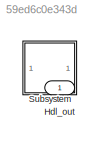
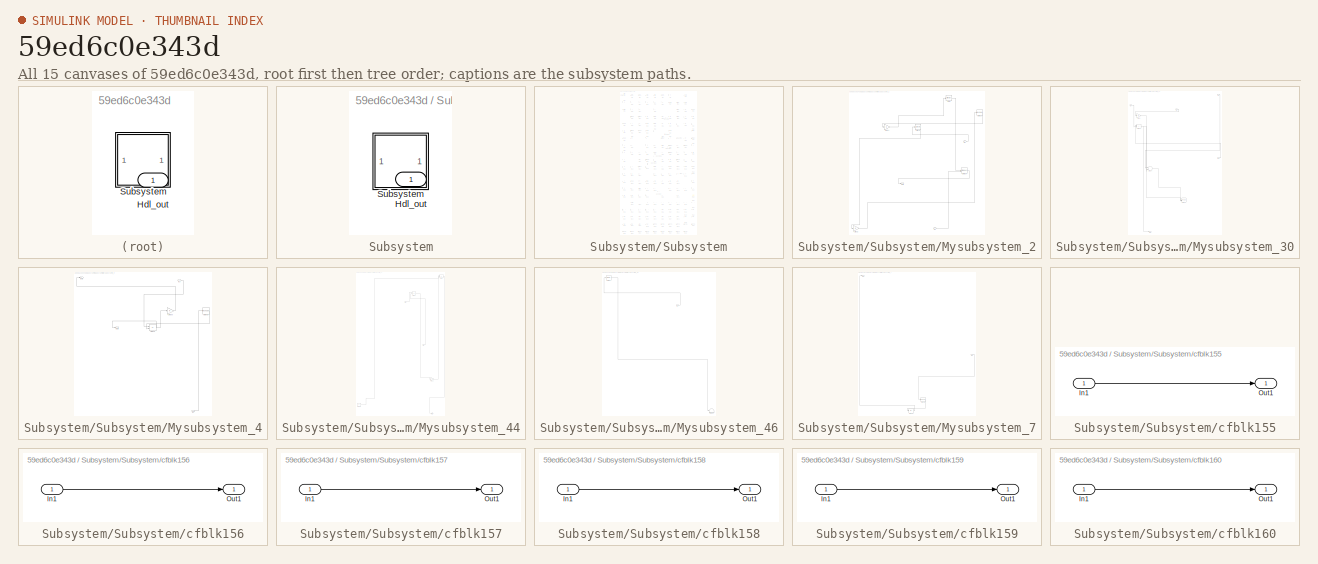
[diagram: thumbnail index - all 15 canvases of the model, root first then tree order]
MODEL slx_59ed6c0e343d
KIND model
CONFIG AbsTol = auto
CONFIG EnableMultiTasking = off
CONFIG FixedStep = auto
CONFIG MaxStep = auto
CONFIG MinStep = auto
CONFIG RelTol = 1e-3
CONFIG SampleTimeConstraint = Unconstrained
CONFIG SolverName = VariableStepAuto
CONFIG StartTime = 0.0
CONFIG StopTime = 10.0
BLOCK [Outport] Hdl_out
  OutDataTypeStr = uint8
BLOCK [SubSystem] Subsystem
BLOCK [Outport] Subsystem/Hdl_out
  OutDataTypeStr = uint8
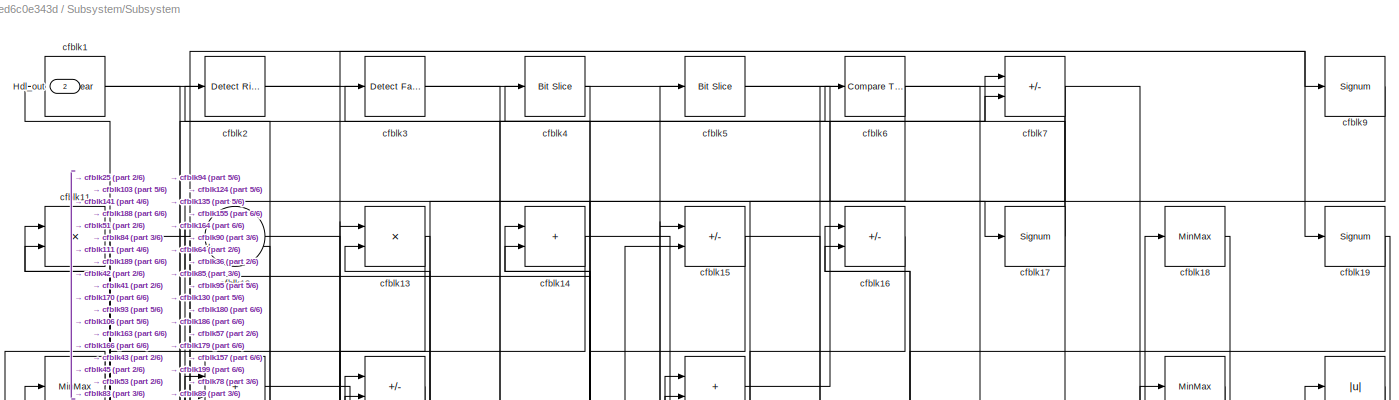
[diagram: Subsystem/Subsystem - part 1/6, full width, top band]
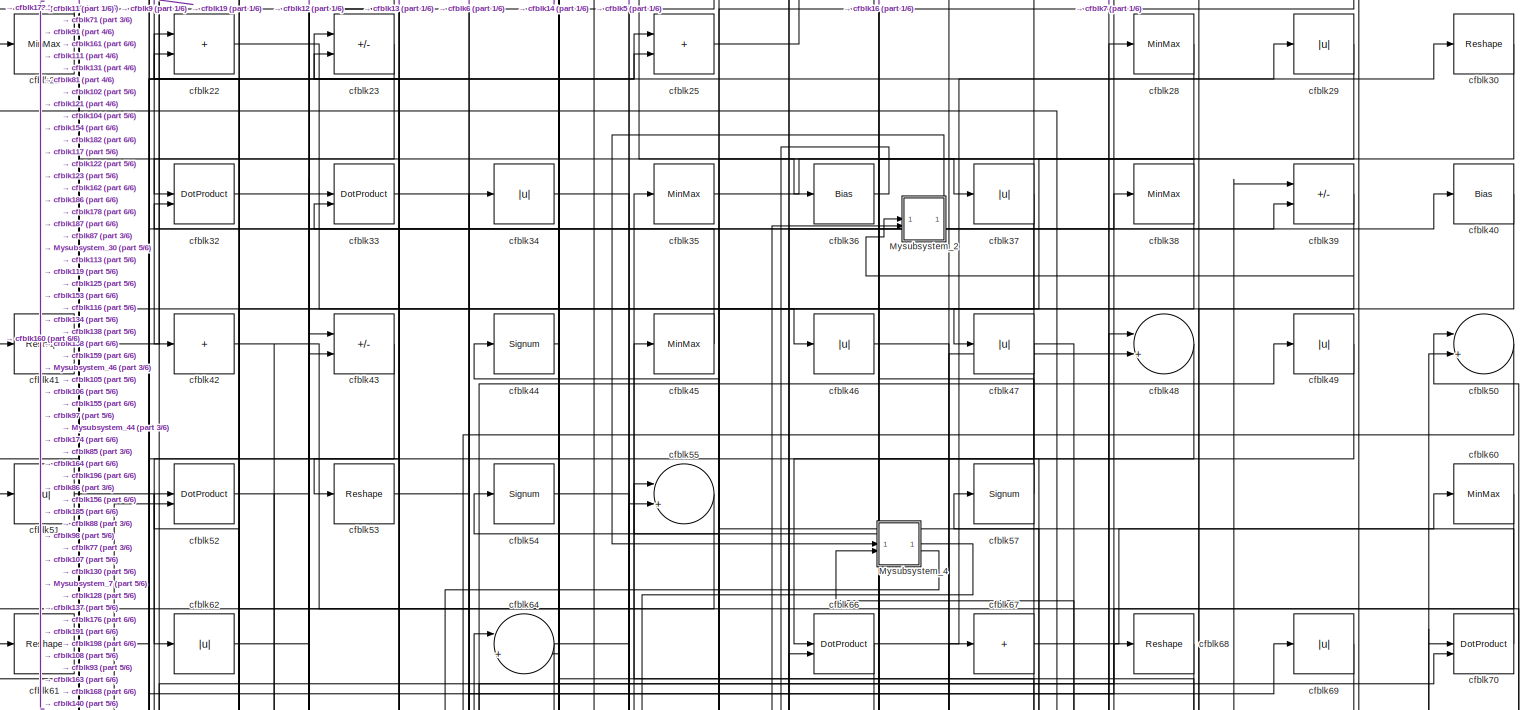
[diagram: Subsystem/Subsystem - part 2/6, full width, top band]
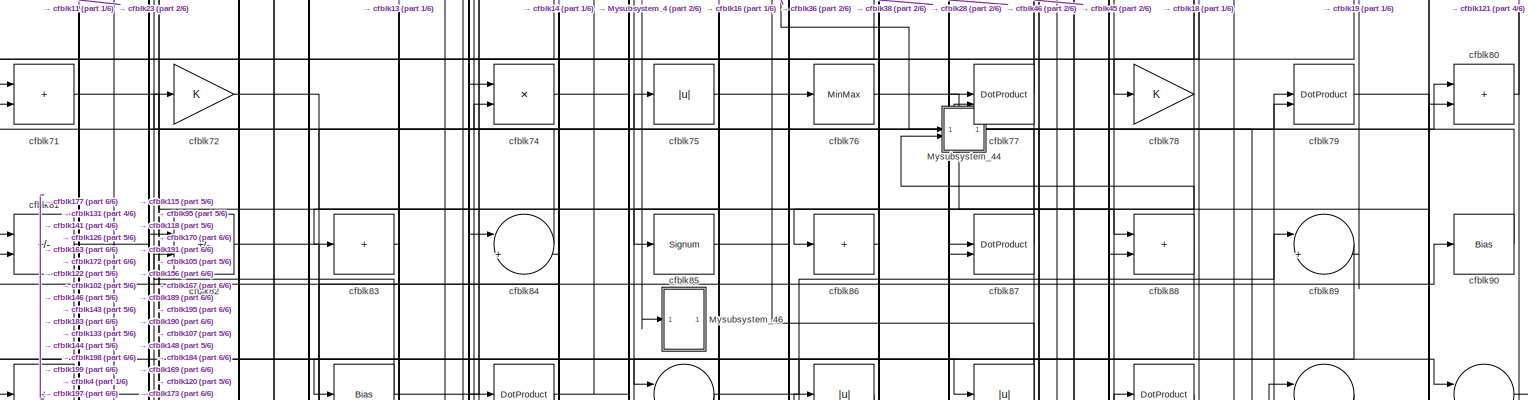
[diagram: Subsystem/Subsystem - part 3/6, full width, middle band]
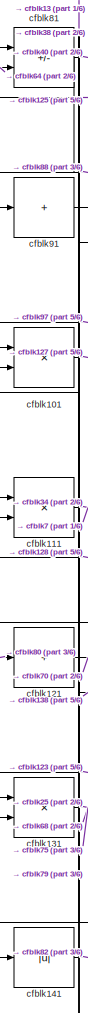
[diagram: Subsystem/Subsystem - part 4/6, middle left region]
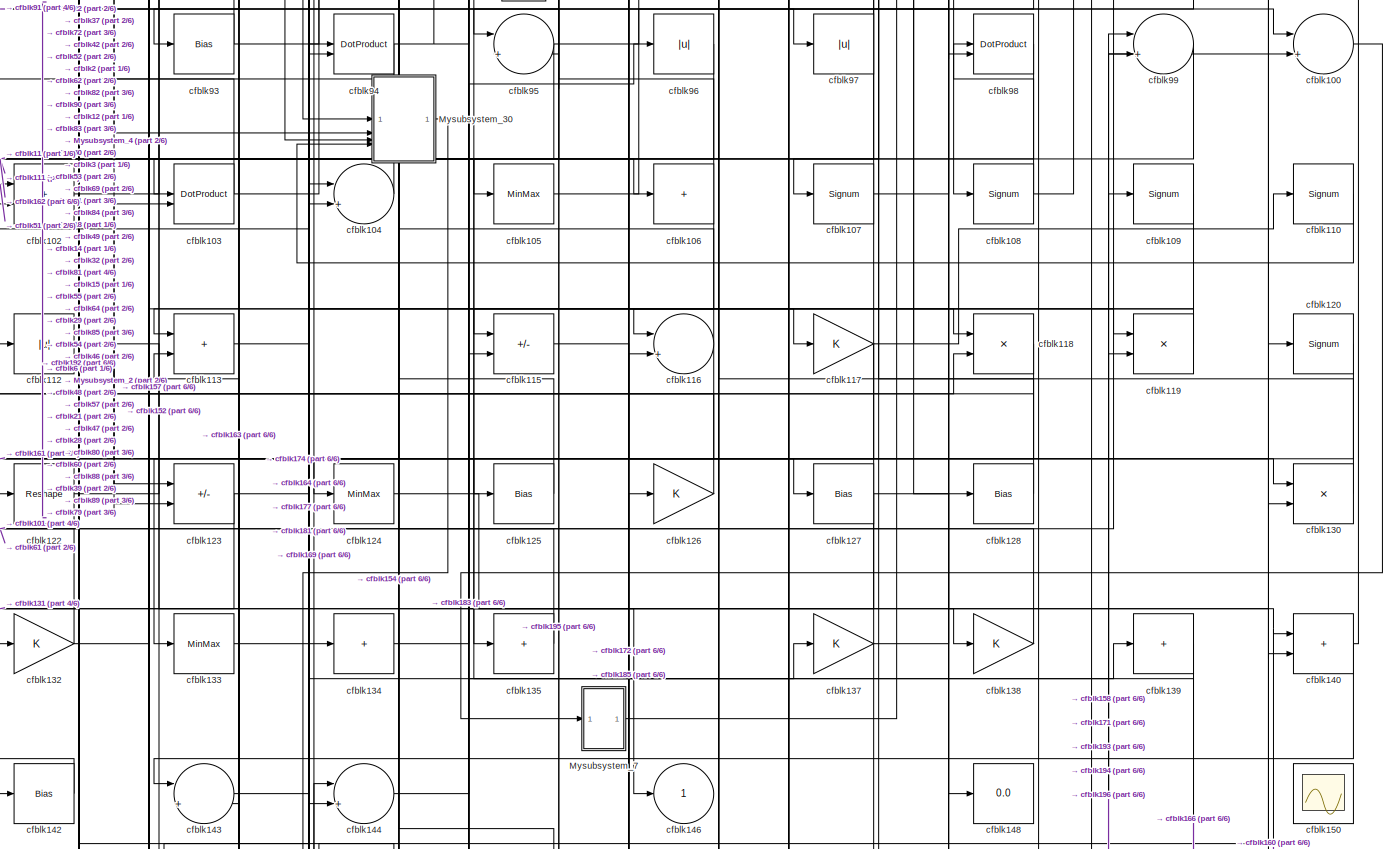
[diagram: Subsystem/Subsystem - part 5/6, full width, middle band]
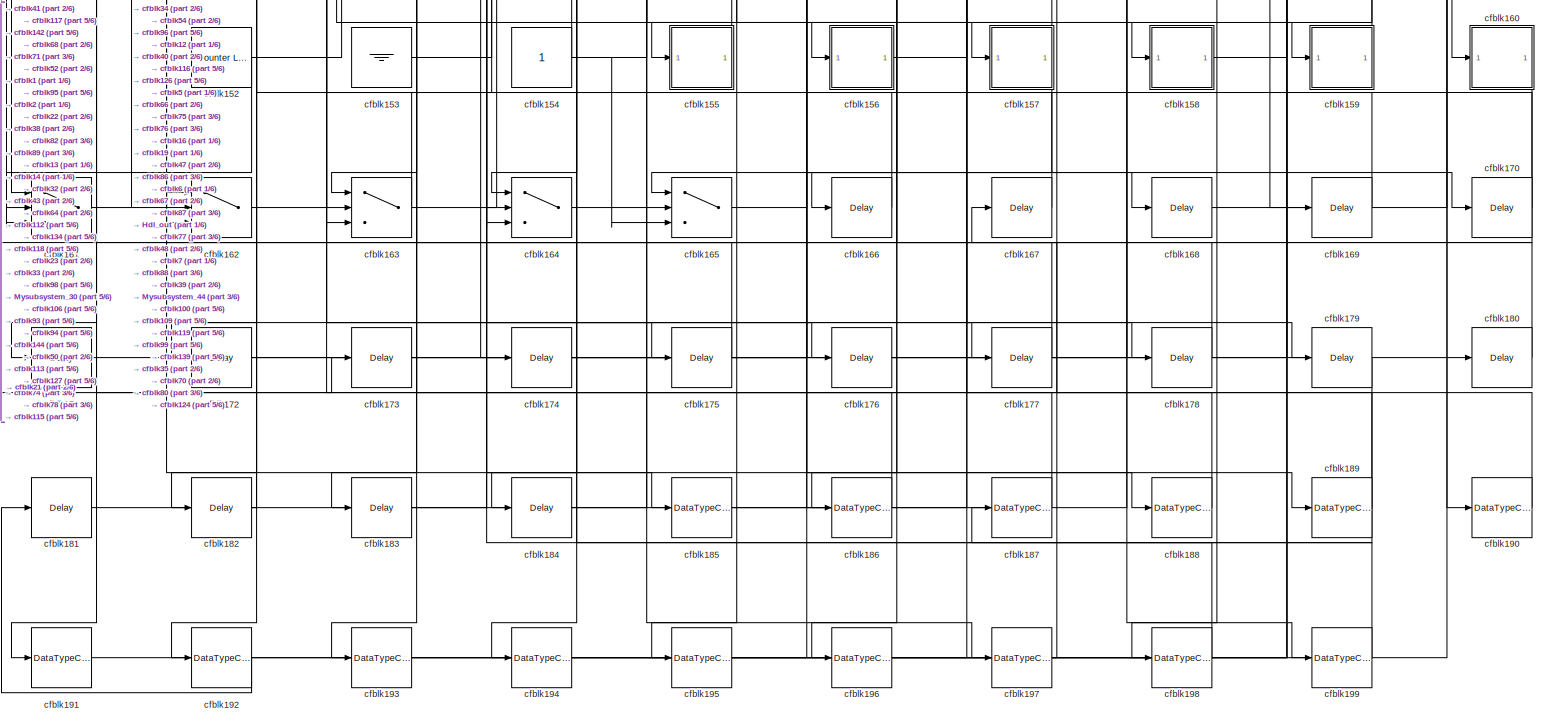
[diagram: Subsystem/Subsystem - part 6/6, full width, bottom band]
BLOCK [SubSystem] Subsystem/Subsystem
BLOCK [Outport] Subsystem/Subsystem/Hdl_out
  OutDataTypeStr = uint8
  Port = 2
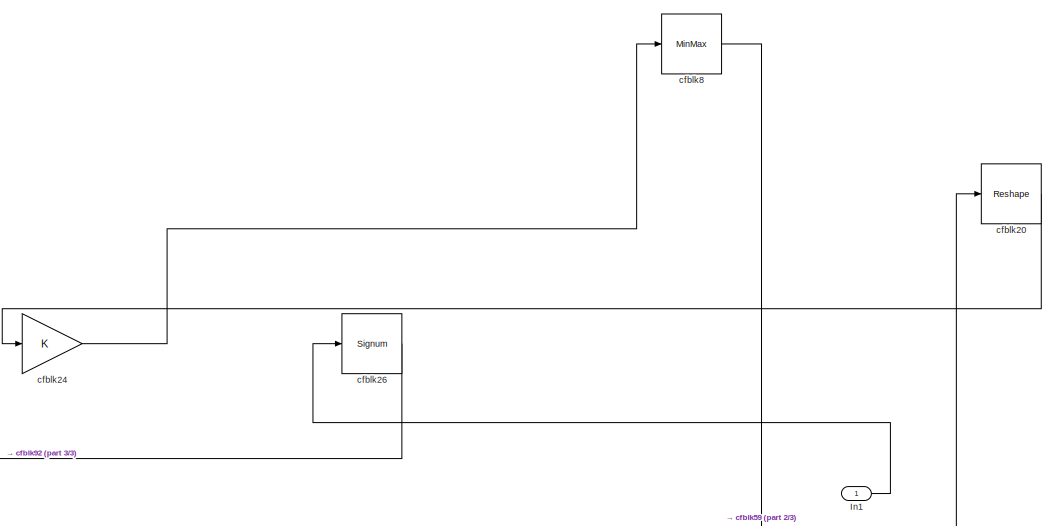
[diagram: Subsystem/Subsystem/Mysubsystem_2 - part 1/3, full width, top band]
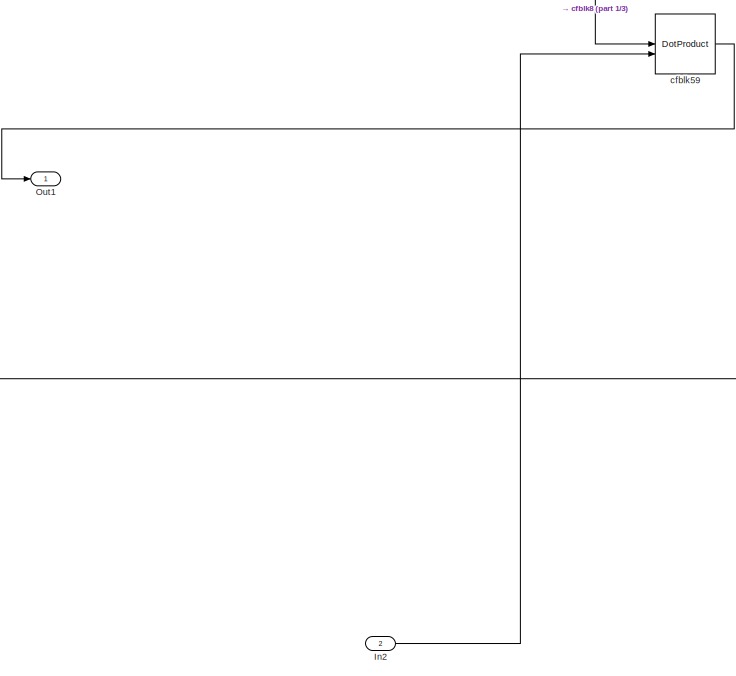
[diagram: Subsystem/Subsystem/Mysubsystem_2 - part 2/3, bottom center region]
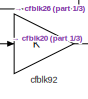
[diagram: Subsystem/Subsystem/Mysubsystem_2 - part 3/3, bottom left region]
BLOCK [SubSystem] Subsystem/Subsystem/Mysubsystem_2
  RTWFcnName = Mysubsystem_2
  RTWFcnNameOpts = User specified
  RTWFileNameOpts = Use function name
  RTWSystemCode = Reusable function
  TreatAsAtomicUnit = on
BLOCK [Inport] Subsystem/Subsystem/Mysubsystem_2/In1
BLOCK [Inport] Subsystem/Subsystem/Mysubsystem_2/In2
  Port = 2
BLOCK [Outport] Subsystem/Subsystem/Mysubsystem_2/Out1
BLOCK [Reshape] Subsystem/Subsystem/Mysubsystem_2/cfblk20
BLOCK [Gain] Subsystem/Subsystem/Mysubsystem_2/cfblk24
BLOCK [Signum] Subsystem/Subsystem/Mysubsystem_2/cfblk26
BLOCK [DotProduct] Subsystem/Subsystem/Mysubsystem_2/cfblk59
  OutDataTypeStr = Inherit: Inherit via internal rule
BLOCK [MinMax] Subsystem/Subsystem/Mysubsystem_2/cfblk8
BLOCK [Gain] Subsystem/Subsystem/Mysubsystem_2/cfblk92
BLOCK [SubSystem] Subsystem/Subsystem/Mysubsystem_30
  RTWFcnName = Mysubsystem_30
  RTWFcnNameOpts = User specified
  RTWFileNameOpts = Use function name
  RTWSystemCode = Reusable function
  TreatAsAtomicUnit = on
BLOCK [Inport] Subsystem/Subsystem/Mysubsystem_30/In1
BLOCK [Inport] Subsystem/Subsystem/Mysubsystem_30/In2
  Port = 2
BLOCK [Inport] Subsystem/Subsystem/Mysubsystem_30/In3
  Port = 3
BLOCK [Inport] Subsystem/Subsystem/Mysubsystem_30/In4
  Port = 4
BLOCK [Outport] Subsystem/Subsystem/Mysubsystem_30/Out1
BLOCK [Sum] Subsystem/Subsystem/Mysubsystem_30/cfblk114
  Inputs = |++
BLOCK [Record] Subsystem/Subsystem/Mysubsystem_30/cfblk147
  CompatibilityTag = XY
  FileSettingsInternal = {"entries":[{"content":{"excelSettings":{"content":{},"type":"Streamout.ExcelSettings"}},"type":"Streamout.FileSettingStorage","uuid":""}],"packageUris":["http:\/\/schema.mathworks.com\/mf0\/streamout_blocks\/R2020a"],"version":"1.0"}
  Layout = [1 1]
  SignalsInternal = {"entries":[{"content":{},"type":"RecordBlkView.InputSignals","uuid":""}],"packageUris":["http:\/\/schema.mathworks.com\/mf0\/streamout_blocks\/R2020a"],"version":"1.0"}
  VisualizationBindings = {"xyplotplugin":{"info":[{"series":[],"subplotID":1}]}}
  st = -1
BLOCK [Gain] Subsystem/Subsystem/Mysubsystem_30/cfblk63
BLOCK [Sum] Subsystem/Subsystem/Mysubsystem_30/cfblk73
  IconShape = rectangular
BLOCK [SubSystem] Subsystem/Subsystem/Mysubsystem_4
  RTWFcnName = Mysubsystem_4
  RTWFcnNameOpts = User specified
  RTWFileNameOpts = Use function name
  RTWSystemCode = Reusable function
  TreatAsAtomicUnit = on
BLOCK [Inport] Subsystem/Subsystem/Mysubsystem_4/In1
BLOCK [Inport] Subsystem/Subsystem/Mysubsystem_4/In2
  Port = 2
BLOCK [Outport] Subsystem/Subsystem/Mysubsystem_4/Out1
BLOCK [Outport] Subsystem/Subsystem/Mysubsystem_4/Out2
  Port = 2
BLOCK [Gain] Subsystem/Subsystem/Mysubsystem_4/cfblk56
BLOCK [Reshape] Subsystem/Subsystem/Mysubsystem_4/cfblk58
BLOCK [Sum] Subsystem/Subsystem/Mysubsystem_4/cfblk65
  IconShape = rectangular
  Inputs = +-
BLOCK [SubSystem] Subsystem/Subsystem/Mysubsystem_44
  RTWFcnName = Mysubsystem_44
  RTWFcnNameOpts = User specified
  RTWFileNameOpts = Use function name
  RTWSystemCode = Reusable function
  TreatAsAtomicUnit = on
BLOCK [Inport] Subsystem/Subsystem/Mysubsystem_44/In1
BLOCK [Inport] Subsystem/Subsystem/Mysubsystem_44/In2
  Port = 2
BLOCK [Outport] Subsystem/Subsystem/Mysubsystem_44/Out1
BLOCK [Sum] Subsystem/Subsystem/Mysubsystem_44/cfblk10
  IconShape = rectangular
  Inputs = +-
BLOCK [Gain] Subsystem/Subsystem/Mysubsystem_44/cfblk129
BLOCK [Constant] Subsystem/Subsystem/Mysubsystem_44/cfblk151
  SampleTime = -1
BLOCK [Sum] Subsystem/Subsystem/Mysubsystem_44/cfblk27
  IconShape = rectangular
  Inputs = +-
BLOCK [SubSystem] Subsystem/Subsystem/Mysubsystem_46
  RTWFcnName = Mysubsystem_46
  RTWFcnNameOpts = User specified
  RTWFileNameOpts = Use function name
  RTWSystemCode = Reusable function
  TreatAsAtomicUnit = on
BLOCK [Inport] Subsystem/Subsystem/Mysubsystem_46/In1
BLOCK [Terminator] Subsystem/Subsystem/Mysubsystem_46/cfblk149
BLOCK [MinMax] Subsystem/Subsystem/Mysubsystem_46/cfblk31
BLOCK [SubSystem] Subsystem/Subsystem/Mysubsystem_7
  RTWFcnName = Mysubsystem_7
  RTWFcnNameOpts = User specified
  RTWFileNameOpts = Use function name
  RTWSystemCode = Reusable function
  TreatAsAtomicUnit = on
BLOCK [Inport] Subsystem/Subsystem/Mysubsystem_7/In1
BLOCK [Outport] Subsystem/Subsystem/Mysubsystem_7/Out1
BLOCK [Reshape] Subsystem/Subsystem/Mysubsystem_7/cfblk136
BLOCK [Abs] Subsystem/Subsystem/Mysubsystem_7/cfblk145
  SaturateOnIntegerOverflow = off
BLOCK [Reference] Subsystem/Subsystem/cfblk1  REF=simulink/Logic and Bit
Operations/Bit Clear
  LibrarySourceBlock = hdlsllib/Logic and Bit\nOperations/Bit Clear
  SourceBlock = simulink/Logic and Bit\nOperations/Bit Clear
  SourceType = Bit Clear
BLOCK [Sum] Subsystem/Subsystem/cfblk100
  Inputs = |++
  OutDataTypeStr = uint8
BLOCK [Product] Subsystem/Subsystem/cfblk101
  Inputs = */
  OutDataTypeStr = uint8
  RndMeth = Zero
  SaturateOnIntegerOverflow = on
BLOCK [Sum] Subsystem/Subsystem/cfblk102
  IconShape = rectangular
  OutDataTypeStr = uint8
BLOCK [DotProduct] Subsystem/Subsystem/cfblk103
  OutDataTypeStr = uint8
BLOCK [Sum] Subsystem/Subsystem/cfblk104
  Inputs = |++
  OutDataTypeStr = uint8
BLOCK [MinMax] Subsystem/Subsystem/cfblk105
  OutDataTypeStr = uint8
BLOCK [Sum] Subsystem/Subsystem/cfblk106
  IconShape = rectangular
  Inputs = +
  OutDataTypeStr = uint8
BLOCK [Signum] Subsystem/Subsystem/cfblk107
BLOCK [Signum] Subsystem/Subsystem/cfblk108
BLOCK [Signum] Subsystem/Subsystem/cfblk109
BLOCK [Product] Subsystem/Subsystem/cfblk11
  Inputs = */
  OutDataTypeStr = uint8
  RndMeth = Zero
  SaturateOnIntegerOverflow = on
BLOCK [Signum] Subsystem/Subsystem/cfblk110
BLOCK [Product] Subsystem/Subsystem/cfblk111
  Inputs = */
  OutDataTypeStr = uint8
  RndMeth = Zero
  SaturateOnIntegerOverflow = on
BLOCK [Abs] Subsystem/Subsystem/cfblk112
  OutDataTypeStr = uint8
  SaturateOnIntegerOverflow = off
BLOCK [Sum] Subsystem/Subsystem/cfblk113
  IconShape = rectangular
  OutDataTypeStr = uint8
BLOCK [Sum] Subsystem/Subsystem/cfblk115
  IconShape = rectangular
  Inputs = +-
  OutDataTypeStr = uint8
BLOCK [Sum] Subsystem/Subsystem/cfblk116
  Inputs = |++
  OutDataTypeStr = uint8
BLOCK [Gain] Subsystem/Subsystem/cfblk117
  OutDataTypeStr = uint8
BLOCK [Product] Subsystem/Subsystem/cfblk118
  Inputs = */
  OutDataTypeStr = uint8
  RndMeth = Zero
  SaturateOnIntegerOverflow = on
BLOCK [Product] Subsystem/Subsystem/cfblk119
  Inputs = */
  OutDataTypeStr = uint8
  RndMeth = Zero
  SaturateOnIntegerOverflow = on
BLOCK [Sum] Subsystem/Subsystem/cfblk12
  Inputs = |++
  OutDataTypeStr = uint8
BLOCK [Signum] Subsystem/Subsystem/cfblk120
BLOCK [Sum] Subsystem/Subsystem/cfblk121
  IconShape = rectangular
  Inputs = +
  OutDataTypeStr = uint8
BLOCK [Reshape] Subsystem/Subsystem/cfblk122
BLOCK [Sum] Subsystem/Subsystem/cfblk123
  IconShape = rectangular
  Inputs = +-
  OutDataTypeStr = uint8
BLOCK [MinMax] Subsystem/Subsystem/cfblk124
  OutDataTypeStr = uint8
BLOCK [Bias] Subsystem/Subsystem/cfblk125
  Bias = 0.0
  SaturateOnIntegerOverflow = off
BLOCK [Gain] Subsystem/Subsystem/cfblk126
  OutDataTypeStr = uint8
BLOCK [Bias] Subsystem/Subsystem/cfblk127
  Bias = 0.0
  SaturateOnIntegerOverflow = off
BLOCK [Bias] Subsystem/Subsystem/cfblk128
  Bias = 0.0
  SaturateOnIntegerOverflow = off
BLOCK [Product] Subsystem/Subsystem/cfblk13
  Inputs = */
  OutDataTypeStr = uint8
  RndMeth = Zero
  SaturateOnIntegerOverflow = on
BLOCK [Product] Subsystem/Subsystem/cfblk130
  Inputs = */
  OutDataTypeStr = uint8
  RndMeth = Zero
  SaturateOnIntegerOverflow = on
BLOCK [Product] Subsystem/Subsystem/cfblk131
  Inputs = */
  OutDataTypeStr = uint8
  RndMeth = Zero
  SaturateOnIntegerOverflow = on
BLOCK [Gain] Subsystem/Subsystem/cfblk132
  OutDataTypeStr = uint8
BLOCK [MinMax] Subsystem/Subsystem/cfblk133
  OutDataTypeStr = uint8
BLOCK [Sum] Subsystem/Subsystem/cfblk134
  IconShape = rectangular
  Inputs = +
  OutDataTypeStr = uint8
BLOCK [Sum] Subsystem/Subsystem/cfblk135
  IconShape = rectangular
  Inputs = +
  OutDataTypeStr = uint8
BLOCK [Gain] Subsystem/Subsystem/cfblk137
  OutDataTypeStr = uint8
BLOCK [Gain] Subsystem/Subsystem/cfblk138
  OutDataTypeStr = uint8
BLOCK [Sum] Subsystem/Subsystem/cfblk139
  IconShape = rectangular
  Inputs = +
  OutDataTypeStr = uint8
BLOCK [Sum] Subsystem/Subsystem/cfblk14
  IconShape = rectangular
  OutDataTypeStr = uint8
BLOCK [Sum] Subsystem/Subsystem/cfblk140
  IconShape = rectangular
  OutDataTypeStr = uint8
BLOCK [Abs] Subsystem/Subsystem/cfblk141
  OutDataTypeStr = uint8
  SaturateOnIntegerOverflow = off
BLOCK [Bias] Subsystem/Subsystem/cfblk142
  Bias = 0.0
  SaturateOnIntegerOverflow = off
BLOCK [Sum] Subsystem/Subsystem/cfblk143
  Inputs = |++
  OutDataTypeStr = uint8
BLOCK [Sum] Subsystem/Subsystem/cfblk144
  Inputs = |++
  OutDataTypeStr = uint8
BLOCK [Outport] Subsystem/Subsystem/cfblk146
  OutDataTypeStr = uint8
  VectorParamsAs1DForOutWhenUnconnected = off
BLOCK [Display] Subsystem/Subsystem/cfblk148
  Decimation = 1
BLOCK [Sum] Subsystem/Subsystem/cfblk15
  IconShape = rectangular
  Inputs = +-
  OutDataTypeStr = uint8
BLOCK [Scope] Subsystem/Subsystem/cfblk150
  Floating = on
  NumInputPorts = 1
  ScopeSpecificationString = Simulink.scopes.TimeScopeBlockCfg('CurrentConfiguration', extmgr.ConfigurationSet(extmgr.Configuration('Core','General UI',true,'FigureColor',[0.156862745098039 0.156862745098039 0.156862745098039]),extmgr.Configuration('Core','Source UI',true),extmgr.Configuration('Sources','WiredSimulink',true,'DataLoggingSaveFormat','StructureWithTime','DataLoggingLimitDataPoints',true,'DataLoggingDecimation','...<+2674ch>
BLOCK [Reference] Subsystem/Subsystem/cfblk152  REF=hdlsllib/Sources/Counter
Limited
  SourceBlock = hdlsllib/Sources/Counter\nLimited
  SourceType = Counter Limited
BLOCK [Ground] Subsystem/Subsystem/cfblk153
BLOCK [Constant] Subsystem/Subsystem/cfblk154
  OutDataTypeStr = uint8
  SampleTime = -1
BLOCK [SubSystem] Subsystem/Subsystem/cfblk155
  LibrarySourceBlock = hdlsllib/Ports &\nSubsystems/Subsystem
BLOCK [Inport] Subsystem/Subsystem/cfblk155/In1
BLOCK [Outport] Subsystem/Subsystem/cfblk155/Out1
BLOCK [SubSystem] Subsystem/Subsystem/cfblk156
  LibrarySourceBlock = hdlsllib/Ports &\nSubsystems/Subsystem
BLOCK [Inport] Subsystem/Subsystem/cfblk156/In1
BLOCK [Outport] Subsystem/Subsystem/cfblk156/Out1
BLOCK [SubSystem] Subsystem/Subsystem/cfblk157
  LibrarySourceBlock = hdlsllib/Ports &\nSubsystems/Subsystem
BLOCK [Inport] Subsystem/Subsystem/cfblk157/In1
BLOCK [Outport] Subsystem/Subsystem/cfblk157/Out1
BLOCK [SubSystem] Subsystem/Subsystem/cfblk158
  LibrarySourceBlock = hdlsllib/Ports &\nSubsystems/Subsystem
BLOCK [Inport] Subsystem/Subsystem/cfblk158/In1
BLOCK [Outport] Subsystem/Subsystem/cfblk158/Out1
BLOCK [SubSystem] Subsystem/Subsystem/cfblk159
  LibrarySourceBlock = hdlsllib/Ports &\nSubsystems/Subsystem
BLOCK [Inport] Subsystem/Subsystem/cfblk159/In1
BLOCK [Outport] Subsystem/Subsystem/cfblk159/Out1
BLOCK [Sum] Subsystem/Subsystem/cfblk16
  IconShape = rectangular
  Inputs = +-
  OutDataTypeStr = uint8
BLOCK [SubSystem] Subsystem/Subsystem/cfblk160
  LibrarySourceBlock = hdlsllib/Ports &\nSubsystems/Subsystem
BLOCK [Inport] Subsystem/Subsystem/cfblk160/In1
BLOCK [Outport] Subsystem/Subsystem/cfblk160/Out1
BLOCK [Switch] Subsystem/Subsystem/cfblk161
  InputSameDT = off
  OutDataTypeStr = uint8
  SaturateOnIntegerOverflow = off
BLOCK [Switch] Subsystem/Subsystem/cfblk162
  InputSameDT = off
  OutDataTypeStr = uint8
  SaturateOnIntegerOverflow = off
BLOCK [Switch] Subsystem/Subsystem/cfblk163
  InputSameDT = off
  OutDataTypeStr = uint8
  SaturateOnIntegerOverflow = off
BLOCK [Switch] Subsystem/Subsystem/cfblk164
  InputSameDT = off
  OutDataTypeStr = uint8
  SaturateOnIntegerOverflow = off
BLOCK [Switch] Subsystem/Subsystem/cfblk165
  InputSameDT = off
  OutDataTypeStr = uint8
  SaturateOnIntegerOverflow = off
BLOCK [Delay] Subsystem/Subsystem/cfblk166
  InputPortMap = u0
  SampleTime = 1
BLOCK [Delay] Subsystem/Subsystem/cfblk167
  InputPortMap = u0
  SampleTime = 1
BLOCK [Delay] Subsystem/Subsystem/cfblk168
  InputPortMap = u0
  SampleTime = 1
BLOCK [Delay] Subsystem/Subsystem/cfblk169
  InputPortMap = u0
  SampleTime = 1
BLOCK [Signum] Subsystem/Subsystem/cfblk17
BLOCK [Delay] Subsystem/Subsystem/cfblk170
  InputPortMap = u0
  SampleTime = 1
BLOCK [Delay] Subsystem/Subsystem/cfblk171
  InputPortMap = u0
  SampleTime = 1
BLOCK [Delay] Subsystem/Subsystem/cfblk172
  InputPortMap = u0
  SampleTime = 1
BLOCK [Delay] Subsystem/Subsystem/cfblk173
  InputPortMap = u0
  SampleTime = 1
BLOCK [Delay] Subsystem/Subsystem/cfblk174
  InputPortMap = u0
  SampleTime = 1
BLOCK [Delay] Subsystem/Subsystem/cfblk175
  InputPortMap = u0
  SampleTime = 1
BLOCK [Delay] Subsystem/Subsystem/cfblk176
  InputPortMap = u0
  SampleTime = 1
BLOCK [Delay] Subsystem/Subsystem/cfblk177
  InputPortMap = u0
  SampleTime = 1
BLOCK [Delay] Subsystem/Subsystem/cfblk178
  InputPortMap = u0
  SampleTime = 1
BLOCK [Delay] Subsystem/Subsystem/cfblk179
  InputPortMap = u0
  SampleTime = 1
BLOCK [MinMax] Subsystem/Subsystem/cfblk18
  OutDataTypeStr = uint8
BLOCK [Delay] Subsystem/Subsystem/cfblk180
  InputPortMap = u0
  SampleTime = 1
BLOCK [Delay] Subsystem/Subsystem/cfblk181
  InputPortMap = u0
  SampleTime = 1
BLOCK [Delay] Subsystem/Subsystem/cfblk182
  InputPortMap = u0
  SampleTime = 1
BLOCK [Delay] Subsystem/Subsystem/cfblk183
  InputPortMap = u0
  SampleTime = 1
BLOCK [Delay] Subsystem/Subsystem/cfblk184
  InputPortMap = u0
  SampleTime = 1
BLOCK [DataTypeConversion] Subsystem/Subsystem/cfblk185
  OutDataTypeStr = uint8
  RndMeth = Floor
  SaturateOnIntegerOverflow = off
BLOCK [DataTypeConversion] Subsystem/Subsystem/cfblk186
  OutDataTypeStr = uint8
  RndMeth = Floor
  SaturateOnIntegerOverflow = off
BLOCK [DataTypeConversion] Subsystem/Subsystem/cfblk187
  OutDataTypeStr = uint8
  RndMeth = Floor
  SaturateOnIntegerOverflow = off
BLOCK [DataTypeConversion] Subsystem/Subsystem/cfblk188
  OutDataTypeStr = uint8
  RndMeth = Floor
  SaturateOnIntegerOverflow = off
BLOCK [DataTypeConversion] Subsystem/Subsystem/cfblk189
  OutDataTypeStr = uint8
  RndMeth = Floor
  SaturateOnIntegerOverflow = off
BLOCK [Signum] Subsystem/Subsystem/cfblk19
BLOCK [DataTypeConversion] Subsystem/Subsystem/cfblk190
  OutDataTypeStr = uint8
  RndMeth = Floor
  SaturateOnIntegerOverflow = off
BLOCK [DataTypeConversion] Subsystem/Subsystem/cfblk191
  OutDataTypeStr = uint8
  RndMeth = Floor
  SaturateOnIntegerOverflow = off
BLOCK [DataTypeConversion] Subsystem/Subsystem/cfblk192
  OutDataTypeStr = uint8
  RndMeth = Floor
  SaturateOnIntegerOverflow = off
BLOCK [DataTypeConversion] Subsystem/Subsystem/cfblk193
  OutDataTypeStr = uint8
  RndMeth = Floor
  SaturateOnIntegerOverflow = off
BLOCK [DataTypeConversion] Subsystem/Subsystem/cfblk194
  OutDataTypeStr = uint8
  RndMeth = Floor
  SaturateOnIntegerOverflow = off
BLOCK [DataTypeConversion] Subsystem/Subsystem/cfblk195
  OutDataTypeStr = uint8
  RndMeth = Floor
  SaturateOnIntegerOverflow = off
BLOCK [DataTypeConversion] Subsystem/Subsystem/cfblk196
  OutDataTypeStr = uint8
  RndMeth = Floor
  SaturateOnIntegerOverflow = off
BLOCK [DataTypeConversion] Subsystem/Subsystem/cfblk197
  OutDataTypeStr = uint8
  RndMeth = Floor
  SaturateOnIntegerOverflow = off
BLOCK [DataTypeConversion] Subsystem/Subsystem/cfblk198
  OutDataTypeStr = uint8
  RndMeth = Floor
  SaturateOnIntegerOverflow = off
BLOCK [DataTypeConversion] Subsystem/Subsystem/cfblk199
  OutDataTypeStr = uint8
  RndMeth = Floor
  SaturateOnIntegerOverflow = off
BLOCK [Reference] Subsystem/Subsystem/cfblk2  REF=hdlsllib/Logic and Bit
Operations/Detect Rise
Positive
  SourceBlock = hdlsllib/Logic and Bit\nOperations/Detect Rise\nPositive
  SourceType = Detect Rise Positive
BLOCK [MinMax] Subsystem/Subsystem/cfblk21
  OutDataTypeStr = uint8
BLOCK [Sum] Subsystem/Subsystem/cfblk22
  IconShape = rectangular
  OutDataTypeStr = uint8
BLOCK [Sum] Subsystem/Subsystem/cfblk23
  IconShape = rectangular
  Inputs = +-
  OutDataTypeStr = uint8
BLOCK [Sum] Subsystem/Subsystem/cfblk25
  IconShape = rectangular
  OutDataTypeStr = uint8
BLOCK [MinMax] Subsystem/Subsystem/cfblk28
  OutDataTypeStr = uint8
BLOCK [Abs] Subsystem/Subsystem/cfblk29
  OutDataTypeStr = uint8
  SaturateOnIntegerOverflow = off
BLOCK [Reference] Subsystem/Subsystem/cfblk3  REF=hdlsllib/Logic and Bit
Operations/Detect Fall
Nonpositive
  SourceBlock = hdlsllib/Logic and Bit\nOperations/Detect Fall\nNonpositive
  SourceType = Detect Fall Nonpositive
BLOCK [Reshape] Subsystem/Subsystem/cfblk30
BLOCK [DotProduct] Subsystem/Subsystem/cfblk32
  OutDataTypeStr = uint8
BLOCK [DotProduct] Subsystem/Subsystem/cfblk33
  OutDataTypeStr = uint8
BLOCK [Abs] Subsystem/Subsystem/cfblk34
  OutDataTypeStr = uint8
  SaturateOnIntegerOverflow = off
BLOCK [MinMax] Subsystem/Subsystem/cfblk35
  OutDataTypeStr = uint8
BLOCK [Bias] Subsystem/Subsystem/cfblk36
  Bias = 0.0
  SaturateOnIntegerOverflow = off
BLOCK [Abs] Subsystem/Subsystem/cfblk37
  OutDataTypeStr = uint8
  SaturateOnIntegerOverflow = off
BLOCK [MinMax] Subsystem/Subsystem/cfblk38
  OutDataTypeStr = uint8
BLOCK [Sum] Subsystem/Subsystem/cfblk39
  IconShape = rectangular
  Inputs = +-
  OutDataTypeStr = uint8
BLOCK [Reference] Subsystem/Subsystem/cfblk4  REF=hdlsllib/Logic and Bit
Operations/Bit Slice
  SourceBlock = hdlsllib/Logic and Bit\nOperations/Bit Slice
  SourceType = Bit Slice
BLOCK [Bias] Subsystem/Subsystem/cfblk40
  Bias = 0.0
  SaturateOnIntegerOverflow = off
BLOCK [Reshape] Subsystem/Subsystem/cfblk41
BLOCK [Sum] Subsystem/Subsystem/cfblk42
  IconShape = rectangular
  Inputs = +
  OutDataTypeStr = uint8
BLOCK [Sum] Subsystem/Subsystem/cfblk43
  IconShape = rectangular
  Inputs = +-
  OutDataTypeStr = uint8
BLOCK [Signum] Subsystem/Subsystem/cfblk44
BLOCK [MinMax] Subsystem/Subsystem/cfblk45
  OutDataTypeStr = uint8
BLOCK [Abs] Subsystem/Subsystem/cfblk46
  OutDataTypeStr = uint8
  SaturateOnIntegerOverflow = off
BLOCK [Abs] Subsystem/Subsystem/cfblk47
  OutDataTypeStr = uint8
  SaturateOnIntegerOverflow = off
BLOCK [Sum] Subsystem/Subsystem/cfblk48
  Inputs = |++
  OutDataTypeStr = uint8
BLOCK [Abs] Subsystem/Subsystem/cfblk49
  OutDataTypeStr = uint8
  SaturateOnIntegerOverflow = off
BLOCK [Reference] Subsystem/Subsystem/cfblk5  REF=hdlsllib/Logic and Bit
Operations/Bit Slice
  SourceBlock = hdlsllib/Logic and Bit\nOperations/Bit Slice
  SourceType = Bit Slice
BLOCK [Sum] Subsystem/Subsystem/cfblk50
  Inputs = |++
  OutDataTypeStr = uint8
BLOCK [Abs] Subsystem/Subsystem/cfblk51
  OutDataTypeStr = uint8
  SaturateOnIntegerOverflow = off
BLOCK [DotProduct] Subsystem/Subsystem/cfblk52
  OutDataTypeStr = uint8
BLOCK [Reshape] Subsystem/Subsystem/cfblk53
BLOCK [Signum] Subsystem/Subsystem/cfblk54
BLOCK [Sum] Subsystem/Subsystem/cfblk55
  Inputs = |++
  OutDataTypeStr = uint8
BLOCK [Signum] Subsystem/Subsystem/cfblk57
BLOCK [Reference] Subsystem/Subsystem/cfblk6  REF=hdlsllib/Logic and Bit
Operations/Compare
To Constant
  SourceBlock = hdlsllib/Logic and Bit\nOperations/Compare\nTo Constant
  SourceType = Compare To Constant
BLOCK [MinMax] Subsystem/Subsystem/cfblk60
  OutDataTypeStr = uint8
BLOCK [Reshape] Subsystem/Subsystem/cfblk61
BLOCK [Abs] Subsystem/Subsystem/cfblk62
  OutDataTypeStr = uint8
  SaturateOnIntegerOverflow = off
BLOCK [Sum] Subsystem/Subsystem/cfblk64
  Inputs = |++
  OutDataTypeStr = uint8
BLOCK [DotProduct] Subsystem/Subsystem/cfblk66
  OutDataTypeStr = uint8
BLOCK [Sum] Subsystem/Subsystem/cfblk67
  IconShape = rectangular
  Inputs = +
  OutDataTypeStr = uint8
BLOCK [Reshape] Subsystem/Subsystem/cfblk68
BLOCK [Abs] Subsystem/Subsystem/cfblk69
  OutDataTypeStr = uint8
  SaturateOnIntegerOverflow = off
BLOCK [Sum] Subsystem/Subsystem/cfblk7
  IconShape = rectangular
  Inputs = +-
  OutDataTypeStr = uint8
BLOCK [DotProduct] Subsystem/Subsystem/cfblk70
  OutDataTypeStr = uint8
BLOCK [Sum] Subsystem/Subsystem/cfblk71
  IconShape = rectangular
  OutDataTypeStr = uint8
BLOCK [Gain] Subsystem/Subsystem/cfblk72
  OutDataTypeStr = uint8
BLOCK [Product] Subsystem/Subsystem/cfblk74
  Inputs = */
  OutDataTypeStr = uint8
  RndMeth = Zero
  SaturateOnIntegerOverflow = on
BLOCK [Abs] Subsystem/Subsystem/cfblk75
  OutDataTypeStr = uint8
  SaturateOnIntegerOverflow = off
BLOCK [MinMax] Subsystem/Subsystem/cfblk76
  OutDataTypeStr = uint8
BLOCK [DotProduct] Subsystem/Subsystem/cfblk77
  OutDataTypeStr = uint8
BLOCK [Gain] Subsystem/Subsystem/cfblk78
  OutDataTypeStr = uint8
BLOCK [DotProduct] Subsystem/Subsystem/cfblk79
  OutDataTypeStr = uint8
BLOCK [Sum] Subsystem/Subsystem/cfblk80
  IconShape = rectangular
  OutDataTypeStr = uint8
BLOCK [Sum] Subsystem/Subsystem/cfblk81
  IconShape = rectangular
  Inputs = +-
  OutDataTypeStr = uint8
BLOCK [Sum] Subsystem/Subsystem/cfblk82
  IconShape = rectangular
  Inputs = +-
  OutDataTypeStr = uint8
BLOCK [Sum] Subsystem/Subsystem/cfblk83
  IconShape = rectangular
  Inputs = +
  OutDataTypeStr = uint8
BLOCK [Sum] Subsystem/Subsystem/cfblk84
  Inputs = |++
  OutDataTypeStr = uint8
BLOCK [Signum] Subsystem/Subsystem/cfblk85
BLOCK [Sum] Subsystem/Subsystem/cfblk86
  IconShape = rectangular
  Inputs = +
  OutDataTypeStr = uint8
BLOCK [DotProduct] Subsystem/Subsystem/cfblk87
  OutDataTypeStr = uint8
BLOCK [Sum] Subsystem/Subsystem/cfblk88
  IconShape = rectangular
  OutDataTypeStr = uint8
BLOCK [Sum] Subsystem/Subsystem/cfblk89
  Inputs = |++
  OutDataTypeStr = uint8
BLOCK [Signum] Subsystem/Subsystem/cfblk9
BLOCK [Bias] Subsystem/Subsystem/cfblk90
  Bias = 0.0
  SaturateOnIntegerOverflow = off
BLOCK [Sum] Subsystem/Subsystem/cfblk91
  IconShape = rectangular
  Inputs = +
  OutDataTypeStr = uint8
BLOCK [Bias] Subsystem/Subsystem/cfblk93
  Bias = 0.0
  SaturateOnIntegerOverflow = off
BLOCK [DotProduct] Subsystem/Subsystem/cfblk94
  OutDataTypeStr = uint8
BLOCK [Sum] Subsystem/Subsystem/cfblk95
  Inputs = |++
  OutDataTypeStr = uint8
BLOCK [Abs] Subsystem/Subsystem/cfblk96
  OutDataTypeStr = uint8
  SaturateOnIntegerOverflow = off
BLOCK [Abs] Subsystem/Subsystem/cfblk97
  OutDataTypeStr = uint8
  SaturateOnIntegerOverflow = off
BLOCK [DotProduct] Subsystem/Subsystem/cfblk98
  OutDataTypeStr = uint8
BLOCK [Sum] Subsystem/Subsystem/cfblk99
  Inputs = |++
  OutDataTypeStr = uint8
LINE Subsystem/Subsystem/Mysubsystem_2/In1:1 -> Subsystem/Subsystem/Mysubsystem_2/cfblk26:1
LINE Subsystem/Subsystem/Mysubsystem_2/In2:1 -> Subsystem/Subsystem/Mysubsystem_2/cfblk59:2
LINE Subsystem/Subsystem/Mysubsystem_2/cfblk20:1 -> Subsystem/Subsystem/Mysubsystem_2/cfblk24:1
LINE Subsystem/Subsystem/Mysubsystem_2/cfblk24:1 -> Subsystem/Subsystem/Mysubsystem_2/cfblk8:1
LINE Subsystem/Subsystem/Mysubsystem_2/cfblk26:1 -> Subsystem/Subsystem/Mysubsystem_2/cfblk92:1
LINE Subsystem/Subsystem/Mysubsystem_2/cfblk59:1 -> Subsystem/Subsystem/Mysubsystem_2/Out1:1
LINE Subsystem/Subsystem/Mysubsystem_2/cfblk8:1 -> Subsystem/Subsystem/Mysubsystem_2/cfblk59:1
LINE Subsystem/Subsystem/Mysubsystem_2/cfblk92:1 -> Subsystem/Subsystem/Mysubsystem_2/cfblk20:1
LINE Subsystem/Subsystem/Mysubsystem_2:1 -> Subsystem/Subsystem/Mysubsystem_4:1
LINE Subsystem/Subsystem/Mysubsystem_30/In1:1 -> Subsystem/Subsystem/Mysubsystem_30/cfblk114:1
LINE Subsystem/Subsystem/Mysubsystem_30/In2:1 -> Subsystem/Subsystem/Mysubsystem_30/cfblk73:2
LINE Subsystem/Subsystem/Mysubsystem_30/In3:1 -> Subsystem/Subsystem/Mysubsystem_30/cfblk63:1
LINE Subsystem/Subsystem/Mysubsystem_30/In4:1 -> Subsystem/Subsystem/Mysubsystem_30/cfblk73:1
LINE Subsystem/Subsystem/Mysubsystem_30/cfblk114:1 -> Subsystem/Subsystem/Mysubsystem_30/cfblk147:2
LINE Subsystem/Subsystem/Mysubsystem_30/cfblk63:1 -> Subsystem/Subsystem/Mysubsystem_30/cfblk147:1
NET Subsystem/Subsystem/Mysubsystem_30/cfblk73:1 -> Subsystem/Subsystem/Mysubsystem_30/Out1:1, Subsystem/Subsystem/Mysubsystem_30/cfblk114:2
LINE Subsystem/Subsystem/Mysubsystem_30:1 -> Subsystem/Subsystem/cfblk174:1
LINE Subsystem/Subsystem/Mysubsystem_4/In1:1 -> Subsystem/Subsystem/Mysubsystem_4/cfblk65:1
LINE Subsystem/Subsystem/Mysubsystem_4/In2:1 -> Subsystem/Subsystem/Mysubsystem_4/cfblk58:1
LINE Subsystem/Subsystem/Mysubsystem_4/cfblk56:1 -> Subsystem/Subsystem/Mysubsystem_4/Out1:1
LINE Subsystem/Subsystem/Mysubsystem_4/cfblk58:1 -> Subsystem/Subsystem/Mysubsystem_4/cfblk65:2
NET Subsystem/Subsystem/Mysubsystem_4/cfblk65:1 -> Subsystem/Subsystem/Mysubsystem_4/Out2:1, Subsystem/Subsystem/Mysubsystem_4/cfblk56:1
LINE Subsystem/Subsystem/Mysubsystem_44/In1:1 -> Subsystem/Subsystem/Mysubsystem_44/cfblk27:1
LINE Subsystem/Subsystem/Mysubsystem_44/In2:1 -> Subsystem/Subsystem/Mysubsystem_44/cfblk27:2
LINE Subsystem/Subsystem/Mysubsystem_44/cfblk10:1 -> Subsystem/Subsystem/Mysubsystem_44/Out1:1
LINE Subsystem/Subsystem/Mysubsystem_44/cfblk129:1 -> Subsystem/Subsystem/Mysubsystem_44/cfblk10:2
LINE Subsystem/Subsystem/Mysubsystem_44/cfblk151:1 -> Subsystem/Subsystem/Mysubsystem_44/cfblk10:1
LINE Subsystem/Subsystem/Mysubsystem_44/cfblk27:1 -> Subsystem/Subsystem/Mysubsystem_44/cfblk129:1
LINE Subsystem/Subsystem/Mysubsystem_44:1 -> Subsystem/Subsystem/cfblk169:1
LINE Subsystem/Subsystem/Mysubsystem_46/In1:1 -> Subsystem/Subsystem/Mysubsystem_46/cfblk31:1
LINE Subsystem/Subsystem/Mysubsystem_46/cfblk31:1 -> Subsystem/Subsystem/Mysubsystem_46/cfblk149:1
LINE Subsystem/Subsystem/Mysubsystem_4:1 -> Subsystem/Subsystem/Mysubsystem_46:1
LINE Subsystem/Subsystem/Mysubsystem_4:2 -> Subsystem/Subsystem/Mysubsystem_30:3
LINE Subsystem/Subsystem/Mysubsystem_7/In1:1 -> Subsystem/Subsystem/Mysubsystem_7/cfblk136:1
LINE Subsystem/Subsystem/Mysubsystem_7/cfblk136:1 -> Subsystem/Subsystem/Mysubsystem_7/cfblk145:1
LINE Subsystem/Subsystem/Mysubsystem_7/cfblk145:1 -> Subsystem/Subsystem/Mysubsystem_7/Out1:1
LINE Subsystem/Subsystem/Mysubsystem_7:1 -> Subsystem/Subsystem/cfblk21:1
LINE Subsystem/Subsystem/cfblk100:1 -> Subsystem/Subsystem/Mysubsystem_7:1
LINE Subsystem/Subsystem/cfblk101:1 -> Subsystem/Subsystem/cfblk127:1
LINE Subsystem/Subsystem/cfblk102:1 -> Subsystem/Subsystem/cfblk90:1
NET Subsystem/Subsystem/cfblk103:1 -> Subsystem/Subsystem/cfblk11:2, Subsystem/Subsystem/cfblk18:1
LINE Subsystem/Subsystem/cfblk104:1 -> Subsystem/Subsystem/cfblk22:1
LINE Subsystem/Subsystem/cfblk105:1 -> Subsystem/Subsystem/cfblk89:1
NET Subsystem/Subsystem/cfblk106:1 -> Subsystem/Subsystem/cfblk164:3, Subsystem/Subsystem/cfblk55:1
LINE Subsystem/Subsystem/cfblk107:1 -> Subsystem/Subsystem/cfblk80:1
NET Subsystem/Subsystem/cfblk108:1 -> Subsystem/Subsystem/cfblk39:1, Subsystem/Subsystem/cfblk98:1
LINE Subsystem/Subsystem/cfblk109:1 -> Subsystem/Subsystem/cfblk195:1
LINE Subsystem/Subsystem/cfblk110:1 -> Subsystem/Subsystem/Mysubsystem_30:4
NET Subsystem/Subsystem/cfblk111:1 -> Subsystem/Subsystem/cfblk34:1, Subsystem/Subsystem/cfblk7:2
NET Subsystem/Subsystem/cfblk112:1 -> Subsystem/Subsystem/cfblk123:2, Subsystem/Subsystem/cfblk157:1
LINE Subsystem/Subsystem/cfblk113:1 -> Subsystem/Subsystem/cfblk69:1
LINE Subsystem/Subsystem/cfblk115:1 -> Subsystem/Subsystem/cfblk130:1
NET Subsystem/Subsystem/cfblk116:1 -> Subsystem/Subsystem/cfblk113:1, Subsystem/Subsystem/cfblk171:1, Subsystem/Subsystem/cfblk32:2
NET Subsystem/Subsystem/cfblk117:1 -> Subsystem/Subsystem/Mysubsystem_4:2, Subsystem/Subsystem/cfblk110:1, Subsystem/Subsystem/cfblk161:3
LINE Subsystem/Subsystem/cfblk118:1 -> Subsystem/Subsystem/cfblk193:1
LINE Subsystem/Subsystem/cfblk119:1 -> Subsystem/Subsystem/cfblk116:1
NET Subsystem/Subsystem/cfblk11:1 -> Subsystem/Subsystem/cfblk135:1, Subsystem/Subsystem/cfblk51:1
LINE Subsystem/Subsystem/cfblk120:1 -> Subsystem/Subsystem/cfblk133:1
LINE Subsystem/Subsystem/cfblk121:1 -> Subsystem/Subsystem/cfblk70:2
NET Subsystem/Subsystem/cfblk122:1 -> Subsystem/Subsystem/cfblk103:2, Subsystem/Subsystem/cfblk39:2, Subsystem/Subsystem/cfblk79:2
NET Subsystem/Subsystem/cfblk123:1 -> Subsystem/Subsystem/cfblk104:2, Subsystem/Subsystem/cfblk131:2
NET Subsystem/Subsystem/cfblk124:1 -> Subsystem/Subsystem/cfblk140:1, Subsystem/Subsystem/cfblk160:1
LINE Subsystem/Subsystem/cfblk125:1 -> Subsystem/Subsystem/cfblk81:1
NET Subsystem/Subsystem/cfblk126:1 -> Subsystem/Subsystem/cfblk112:1, Subsystem/Subsystem/cfblk72:1
NET Subsystem/Subsystem/cfblk127:1 -> Subsystem/Subsystem/cfblk140:2, Subsystem/Subsystem/cfblk142:1, Subsystem/Subsystem/cfblk194:1
NET Subsystem/Subsystem/cfblk128:1 -> Subsystem/Subsystem/cfblk111:1, Subsystem/Subsystem/cfblk54:1
LINE Subsystem/Subsystem/cfblk12:1 -> Subsystem/Subsystem/cfblk43:1
LINE Subsystem/Subsystem/cfblk130:1 -> Subsystem/Subsystem/cfblk57:1
NET Subsystem/Subsystem/cfblk131:1 -> Subsystem/Subsystem/cfblk25:2, Subsystem/Subsystem/cfblk68:1, Subsystem/Subsystem/cfblk75:1, Subsystem/Subsystem/cfblk79:1
NET Subsystem/Subsystem/cfblk132:1 -> Subsystem/Subsystem/cfblk118:2, Subsystem/Subsystem/cfblk61:1
LINE Subsystem/Subsystem/cfblk133:1 -> Subsystem/Subsystem/cfblk84:1
LINE Subsystem/Subsystem/cfblk134:1 -> Subsystem/Subsystem/cfblk55:2
LINE Subsystem/Subsystem/cfblk135:1 -> Subsystem/Subsystem/cfblk14:2
LINE Subsystem/Subsystem/cfblk137:1 -> Subsystem/Subsystem/cfblk28:1
LINE Subsystem/Subsystem/cfblk138:1 -> Subsystem/Subsystem/cfblk101:1
LINE Subsystem/Subsystem/cfblk139:1 -> Subsystem/Subsystem/cfblk166:1
NET Subsystem/Subsystem/cfblk13:1 -> Subsystem/Subsystem/cfblk141:1, Subsystem/Subsystem/cfblk83:1
NET Subsystem/Subsystem/cfblk140:1 -> Subsystem/Subsystem/cfblk143:1, Subsystem/Subsystem/cfblk50:1
LINE Subsystem/Subsystem/cfblk141:1 -> Subsystem/Subsystem/cfblk82:1
LINE Subsystem/Subsystem/cfblk142:1 -> Subsystem/Subsystem/cfblk161:1
LINE Subsystem/Subsystem/cfblk143:1 -> Subsystem/Subsystem/cfblk139:1
LINE Subsystem/Subsystem/cfblk144:1 -> Subsystem/Subsystem/cfblk137:1
NET Subsystem/Subsystem/cfblk14:1 -> Subsystem/Subsystem/cfblk163:3, Subsystem/Subsystem/cfblk36:1
NET Subsystem/Subsystem/cfblk152:1 -> Subsystem/Subsystem/cfblk134:1, Subsystem/Subsystem/cfblk161:2
LINE Subsystem/Subsystem/cfblk153:1 -> Subsystem/Subsystem/cfblk64:1
NET Subsystem/Subsystem/cfblk154:1 -> Subsystem/Subsystem/cfblk113:2, Subsystem/Subsystem/cfblk165:3, Subsystem/Subsystem/cfblk52:1, Subsystem/Subsystem/cfblk96:1
LINE Subsystem/Subsystem/cfblk155/In1:1 -> Subsystem/Subsystem/cfblk155/Out1:1
LINE Subsystem/Subsystem/cfblk155:1 -> Subsystem/Subsystem/cfblk12:1
LINE Subsystem/Subsystem/cfblk156/In1:1 -> Subsystem/Subsystem/cfblk156/Out1:1
LINE Subsystem/Subsystem/cfblk156:1 -> Subsystem/Subsystem/cfblk48:2
LINE Subsystem/Subsystem/cfblk157/In1:1 -> Subsystem/Subsystem/cfblk157/Out1:1
NET Subsystem/Subsystem/cfblk157:1 -> Subsystem/Subsystem/Hdl_out:1, Subsystem/Subsystem/cfblk165:1
LINE Subsystem/Subsystem/cfblk158/In1:1 -> Subsystem/Subsystem/cfblk158/Out1:1
LINE Subsystem/Subsystem/cfblk158:1 -> Subsystem/Subsystem/cfblk100:2
LINE Subsystem/Subsystem/cfblk159/In1:1 -> Subsystem/Subsystem/cfblk159/Out1:1
LINE Subsystem/Subsystem/cfblk159:1 -> Subsystem/Subsystem/cfblk35:1
NET Subsystem/Subsystem/cfblk15:1 -> Subsystem/Subsystem/cfblk124:1, Subsystem/Subsystem/cfblk130:2
LINE Subsystem/Subsystem/cfblk160/In1:1 -> Subsystem/Subsystem/cfblk160/Out1:1
LINE Subsystem/Subsystem/cfblk160:1 -> Subsystem/Subsystem/cfblk41:1
NET Subsystem/Subsystem/cfblk161:1 -> Subsystem/Subsystem/cfblk175:1, Subsystem/Subsystem/cfblk52:2
LINE Subsystem/Subsystem/cfblk162:1 -> Subsystem/Subsystem/cfblk43:2
NET Subsystem/Subsystem/cfblk163:1 -> Subsystem/Subsystem/cfblk50:2, Subsystem/Subsystem/cfblk82:2
LINE Subsystem/Subsystem/cfblk164:1 -> Subsystem/Subsystem/cfblk165:2
LINE Subsystem/Subsystem/cfblk165:1 -> Subsystem/Subsystem/cfblk168:1
LINE Subsystem/Subsystem/cfblk166:1 -> Subsystem/Subsystem/cfblk13:1
LINE Subsystem/Subsystem/cfblk167:1 -> Subsystem/Subsystem/cfblk87:1
LINE Subsystem/Subsystem/cfblk168:1 -> Subsystem/Subsystem/cfblk70:1
LINE Subsystem/Subsystem/cfblk169:1 -> Subsystem/Subsystem/cfblk144:1
LINE Subsystem/Subsystem/cfblk16:1 -> Subsystem/Subsystem/cfblk85:1
LINE Subsystem/Subsystem/cfblk170:1 -> Subsystem/Subsystem/cfblk2:1
LINE Subsystem/Subsystem/cfblk171:1 -> Subsystem/Subsystem/cfblk119:2
LINE Subsystem/Subsystem/cfblk172:1 -> Subsystem/Subsystem/cfblk116:2
LINE Subsystem/Subsystem/cfblk173:1 -> Subsystem/Subsystem/cfblk80:2
LINE Subsystem/Subsystem/cfblk174:1 -> Subsystem/Subsystem/cfblk66:2
LINE Subsystem/Subsystem/cfblk175:1 -> Subsystem/Subsystem/cfblk162:1
LINE Subsystem/Subsystem/cfblk176:1 -> Subsystem/Subsystem/cfblk48:1
LINE Subsystem/Subsystem/cfblk177:1 -> Subsystem/Subsystem/cfblk71:2
LINE Subsystem/Subsystem/cfblk178:1 -> Subsystem/Subsystem/cfblk23:2
LINE Subsystem/Subsystem/cfblk179:1 -> Subsystem/Subsystem/cfblk187:1
LINE Subsystem/Subsystem/cfblk17:1 -> Subsystem/Subsystem/cfblk3:1
LINE Subsystem/Subsystem/cfblk180:1 -> Subsystem/Subsystem/cfblk16:2
LINE Subsystem/Subsystem/cfblk181:1 -> Subsystem/Subsystem/cfblk94:2
LINE Subsystem/Subsystem/cfblk182:1 -> Subsystem/Subsystem/cfblk22:2
LINE Subsystem/Subsystem/cfblk183:1 -> Subsystem/Subsystem/cfblk115:2
LINE Subsystem/Subsystem/cfblk184:1 -> Subsystem/Subsystem/cfblk88:2
NET Subsystem/Subsystem/cfblk185:1 -> Subsystem/Subsystem/cfblk126:1, Subsystem/Subsystem/cfblk67:1
LINE Subsystem/Subsystem/cfblk186:1 -> Subsystem/Subsystem/cfblk33:1
LINE Subsystem/Subsystem/cfblk187:1 -> Subsystem/Subsystem/cfblk33:2
LINE Subsystem/Subsystem/cfblk188:1 -> Subsystem/Subsystem/cfblk1:1
LINE Subsystem/Subsystem/cfblk189:1 -> Subsystem/Subsystem/cfblk77:1
LINE Subsystem/Subsystem/cfblk18:1 -> Subsystem/Subsystem/cfblk78:1
LINE Subsystem/Subsystem/cfblk190:1 -> Subsystem/Subsystem/cfblk77:2
LINE Subsystem/Subsystem/cfblk191:1 -> Subsystem/Subsystem/cfblk76:1
NET Subsystem/Subsystem/cfblk192:1 -> Subsystem/Subsystem/cfblk180:1, Subsystem/Subsystem/cfblk181:1
LINE Subsystem/Subsystem/cfblk193:1 -> Subsystem/Subsystem/cfblk99:1
LINE Subsystem/Subsystem/cfblk194:1 -> Subsystem/Subsystem/cfblk99:2
LINE Subsystem/Subsystem/cfblk195:1 -> Subsystem/Subsystem/cfblk87:2
LINE Subsystem/Subsystem/cfblk196:1 -> Subsystem/Subsystem/cfblk109:1
LINE Subsystem/Subsystem/cfblk197:1 -> Subsystem/Subsystem/cfblk167:1
LINE Subsystem/Subsystem/cfblk198:1 -> Subsystem/Subsystem/cfblk74:1
LINE Subsystem/Subsystem/cfblk199:1 -> Subsystem/Subsystem/cfblk74:2
NET Subsystem/Subsystem/cfblk19:1 -> Subsystem/Subsystem/cfblk186:1, Subsystem/Subsystem/cfblk89:2
LINE Subsystem/Subsystem/cfblk1:1 -> Subsystem/Subsystem/cfblk189:1
LINE Subsystem/Subsystem/cfblk21:1 -> Subsystem/Subsystem/cfblk173:1
LINE Subsystem/Subsystem/cfblk22:1 -> Subsystem/Subsystem/cfblk46:1
LINE Subsystem/Subsystem/cfblk23:1 -> Subsystem/Subsystem/cfblk71:1
LINE Subsystem/Subsystem/cfblk25:1 -> Subsystem/Subsystem/cfblk7:1
LINE Subsystem/Subsystem/cfblk28:1 -> Subsystem/Subsystem/cfblk86:1
LINE Subsystem/Subsystem/cfblk29:1 -> Subsystem/Subsystem/cfblk105:1
NET Subsystem/Subsystem/cfblk2:1 -> Subsystem/Subsystem/cfblk106:1, Subsystem/Subsystem/cfblk9:1
LINE Subsystem/Subsystem/cfblk30:1 -> Subsystem/Subsystem/cfblk47:1
LINE Subsystem/Subsystem/cfblk32:1 -> Subsystem/Subsystem/cfblk178:1
LINE Subsystem/Subsystem/cfblk33:1 -> Subsystem/Subsystem/cfblk185:1
LINE Subsystem/Subsystem/cfblk34:1 -> Subsystem/Subsystem/cfblk159:1
LINE Subsystem/Subsystem/cfblk35:1 -> Subsystem/Subsystem/cfblk37:1
LINE Subsystem/Subsystem/cfblk36:1 -> Subsystem/Subsystem/Mysubsystem_44:1
LINE Subsystem/Subsystem/cfblk37:1 -> Subsystem/Subsystem/cfblk122:1
NET Subsystem/Subsystem/cfblk38:1 -> Subsystem/Subsystem/cfblk182:1, Subsystem/Subsystem/cfblk32:1, Subsystem/Subsystem/cfblk91:1
NET Subsystem/Subsystem/cfblk39:1 -> Subsystem/Subsystem/Mysubsystem_2:1, Subsystem/Subsystem/cfblk198:1
LINE Subsystem/Subsystem/cfblk3:1 -> Subsystem/Subsystem/cfblk94:1
LINE Subsystem/Subsystem/cfblk40:1 -> Subsystem/Subsystem/cfblk155:1
LINE Subsystem/Subsystem/cfblk41:1 -> Subsystem/Subsystem/cfblk19:1
NET Subsystem/Subsystem/cfblk42:1 -> Subsystem/Subsystem/cfblk104:1, Subsystem/Subsystem/cfblk123:1, Subsystem/Subsystem/cfblk125:1
LINE Subsystem/Subsystem/cfblk43:1 -> Subsystem/Subsystem/cfblk62:1
LINE Subsystem/Subsystem/cfblk44:1 -> Subsystem/Subsystem/cfblk64:2
LINE Subsystem/Subsystem/cfblk45:1 -> Subsystem/Subsystem/cfblk13:2
NET Subsystem/Subsystem/cfblk46:1 -> Subsystem/Subsystem/cfblk88:1, Subsystem/Subsystem/cfblk98:2
NET Subsystem/Subsystem/cfblk47:1 -> Subsystem/Subsystem/cfblk128:1, Subsystem/Subsystem/cfblk196:1
NET Subsystem/Subsystem/cfblk48:1 -> Subsystem/Subsystem/cfblk107:1, Subsystem/Subsystem/cfblk162:2
LINE Subsystem/Subsystem/cfblk49:1 -> Subsystem/Subsystem/cfblk66:1
LINE Subsystem/Subsystem/cfblk4:1 -> Subsystem/Subsystem/cfblk84:2
LINE Subsystem/Subsystem/cfblk50:1 -> Subsystem/Subsystem/Mysubsystem_30:1
LINE Subsystem/Subsystem/cfblk51:1 -> Subsystem/Subsystem/cfblk102:1
NET Subsystem/Subsystem/cfblk52:1 -> Subsystem/Subsystem/Mysubsystem_30:2, Subsystem/Subsystem/cfblk176:1
NET Subsystem/Subsystem/cfblk53:1 -> Subsystem/Subsystem/cfblk119:1, Subsystem/Subsystem/cfblk6:1
LINE Subsystem/Subsystem/cfblk54:1 -> Subsystem/Subsystem/cfblk158:1
LINE Subsystem/Subsystem/cfblk55:1 -> Subsystem/Subsystem/cfblk132:1
LINE Subsystem/Subsystem/cfblk57:1 -> Subsystem/Subsystem/cfblk16:1
NET Subsystem/Subsystem/cfblk5:1 -> Subsystem/Subsystem/cfblk17:1, Subsystem/Subsystem/cfblk188:1
LINE Subsystem/Subsystem/cfblk60:1 -> Subsystem/Subsystem/cfblk108:1
LINE Subsystem/Subsystem/cfblk61:1 -> Subsystem/Subsystem/cfblk30:1
LINE Subsystem/Subsystem/cfblk62:1 -> Subsystem/Subsystem/cfblk117:1
NET Subsystem/Subsystem/cfblk64:1 -> Subsystem/Subsystem/cfblk138:1, Subsystem/Subsystem/cfblk163:2, Subsystem/Subsystem/cfblk5:1, Subsystem/Subsystem/cfblk81:2
NET Subsystem/Subsystem/cfblk66:1 -> Subsystem/Subsystem/cfblk164:2, Subsystem/Subsystem/cfblk29:1
LINE Subsystem/Subsystem/cfblk67:1 -> Subsystem/Subsystem/cfblk60:1
LINE Subsystem/Subsystem/cfblk68:1 -> Subsystem/Subsystem/cfblk191:1
LINE Subsystem/Subsystem/cfblk69:1 -> Subsystem/Subsystem/cfblk93:1
NET Subsystem/Subsystem/cfblk6:1 -> Subsystem/Subsystem/cfblk179:1, Subsystem/Subsystem/cfblk95:1
LINE Subsystem/Subsystem/cfblk70:1 -> Subsystem/Subsystem/cfblk44:1
LINE Subsystem/Subsystem/cfblk71:1 -> Subsystem/Subsystem/cfblk144:2
LINE Subsystem/Subsystem/cfblk72:1 -> Subsystem/Subsystem/cfblk148:1
LINE Subsystem/Subsystem/cfblk74:1 -> Subsystem/Subsystem/cfblk197:1
LINE Subsystem/Subsystem/cfblk75:1 -> Subsystem/Subsystem/cfblk170:1
LINE Subsystem/Subsystem/cfblk76:1 -> Subsystem/Subsystem/cfblk190:1
LINE Subsystem/Subsystem/cfblk77:1 -> Subsystem/Subsystem/cfblk45:1
NET Subsystem/Subsystem/cfblk78:1 -> Subsystem/Subsystem/cfblk183:1, Subsystem/Subsystem/cfblk184:1, Subsystem/Subsystem/cfblk4:1
LINE Subsystem/Subsystem/cfblk79:1 -> Subsystem/Subsystem/cfblk120:1
NET Subsystem/Subsystem/cfblk7:1 -> Subsystem/Subsystem/cfblk164:1, Subsystem/Subsystem/cfblk199:1, Subsystem/Subsystem/cfblk53:1
LINE Subsystem/Subsystem/cfblk80:1 -> Subsystem/Subsystem/cfblk121:1
NET Subsystem/Subsystem/cfblk81:1 -> Subsystem/Subsystem/cfblk101:2, Subsystem/Subsystem/cfblk40:1
LINE Subsystem/Subsystem/cfblk82:1 -> Subsystem/Subsystem/cfblk146:1
LINE Subsystem/Subsystem/cfblk83:1 -> Subsystem/Subsystem/cfblk143:2
LINE Subsystem/Subsystem/cfblk84:1 -> Subsystem/Subsystem/cfblk11:1
NET Subsystem/Subsystem/cfblk85:1 -> Subsystem/Subsystem/cfblk118:1, Subsystem/Subsystem/cfblk38:1
LINE Subsystem/Subsystem/cfblk86:1 -> Subsystem/Subsystem/cfblk156:1
LINE Subsystem/Subsystem/cfblk87:1 -> Subsystem/Subsystem/cfblk23:1
NET Subsystem/Subsystem/cfblk88:1 -> Subsystem/Subsystem/Mysubsystem_44:2, Subsystem/Subsystem/cfblk115:1, Subsystem/Subsystem/cfblk131:1
NET Subsystem/Subsystem/cfblk89:1 -> Subsystem/Subsystem/cfblk172:1, Subsystem/Subsystem/cfblk95:2
LINE Subsystem/Subsystem/cfblk90:1 -> Subsystem/Subsystem/cfblk14:1
NET Subsystem/Subsystem/cfblk91:1 -> Subsystem/Subsystem/cfblk25:1, Subsystem/Subsystem/cfblk97:1
NET Subsystem/Subsystem/cfblk93:1 -> Subsystem/Subsystem/cfblk12:2, Subsystem/Subsystem/cfblk177:1, Subsystem/Subsystem/cfblk49:1
NET Subsystem/Subsystem/cfblk94:1 -> Subsystem/Subsystem/cfblk102:2, Subsystem/Subsystem/cfblk15:1, Subsystem/Subsystem/cfblk15:2
NET Subsystem/Subsystem/cfblk95:1 -> Subsystem/Subsystem/cfblk100:1, Subsystem/Subsystem/cfblk162:3
LINE Subsystem/Subsystem/cfblk96:1 -> Subsystem/Subsystem/cfblk103:1
NET Subsystem/Subsystem/cfblk97:1 -> Subsystem/Subsystem/Mysubsystem_2:2, Subsystem/Subsystem/cfblk111:2
LINE Subsystem/Subsystem/cfblk98:1 -> Subsystem/Subsystem/cfblk163:1
LINE Subsystem/Subsystem/cfblk99:1 -> Subsystem/Subsystem/cfblk192:1
LINE Subsystem/Subsystem/cfblk9:1 -> Subsystem/Subsystem/cfblk42:1
note: NET lines group one-source signal fan-out (src -> all destinations, sorted); 1:1 wires keep LINE
